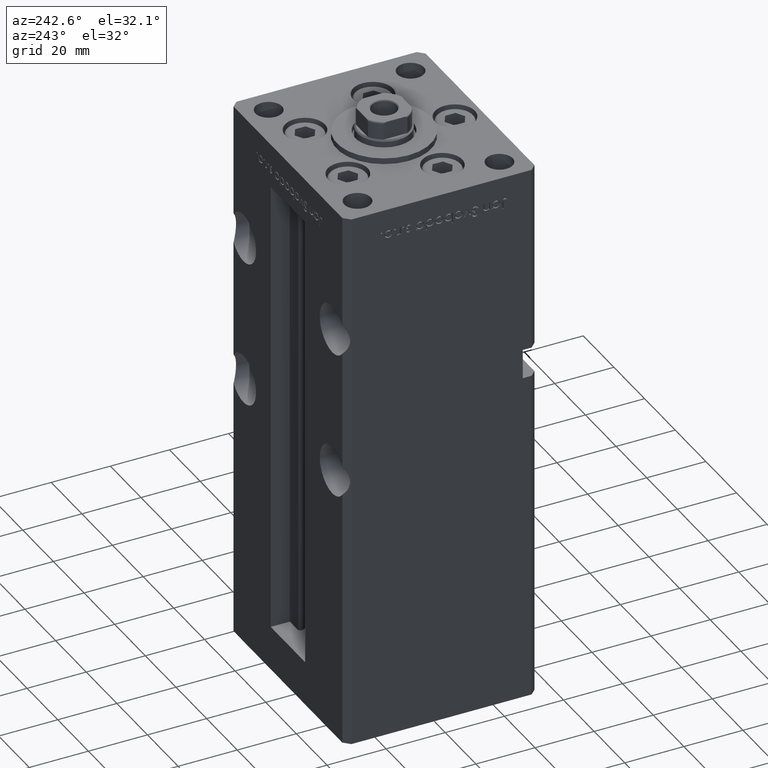
[diagram: clean part render]
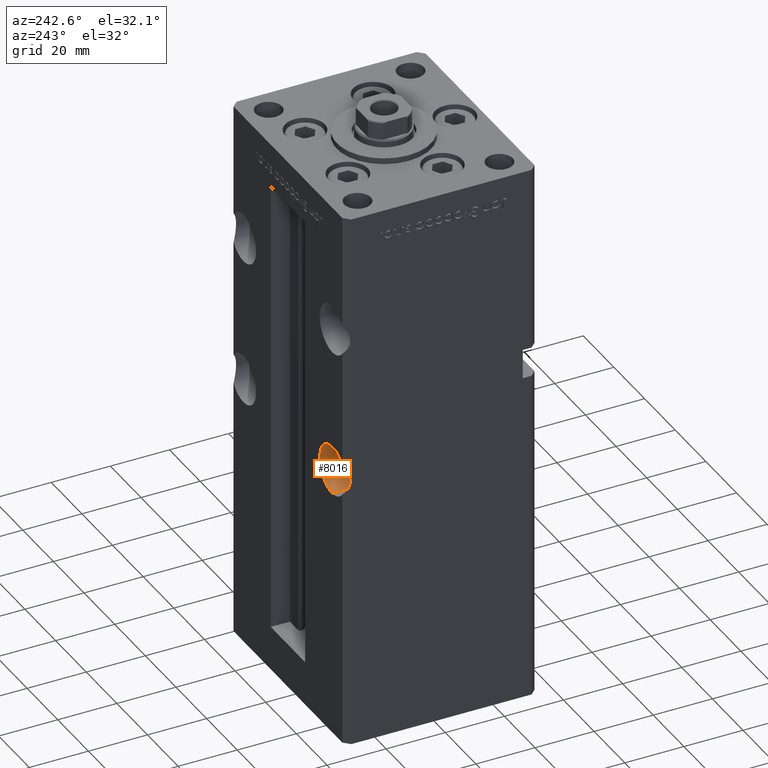
[diagram: same view with one face highlighted and labeled with its STEP entity id]
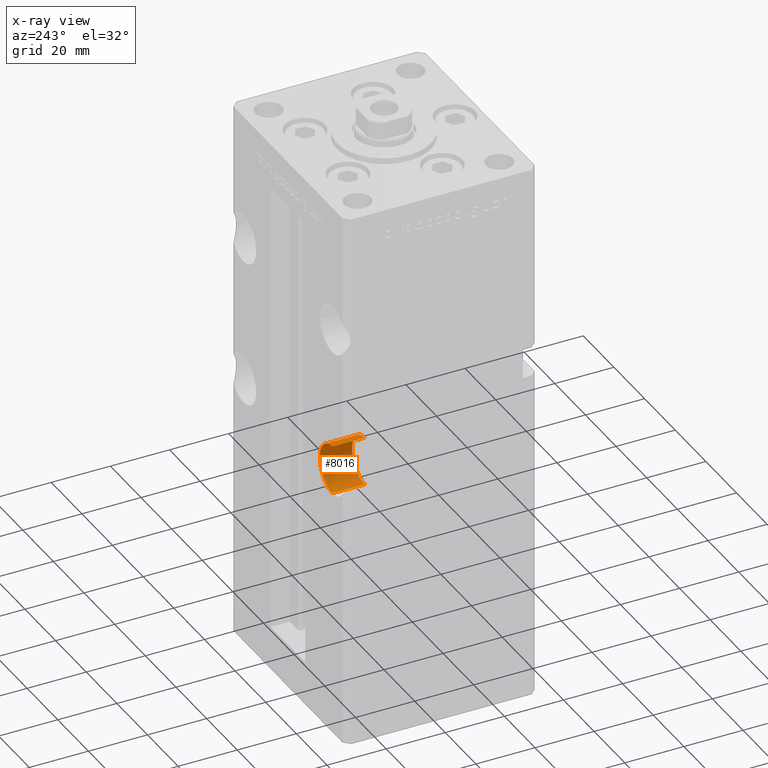
[diagram: x-ray of the same camera — body ghosted, the highlighted face saturated]
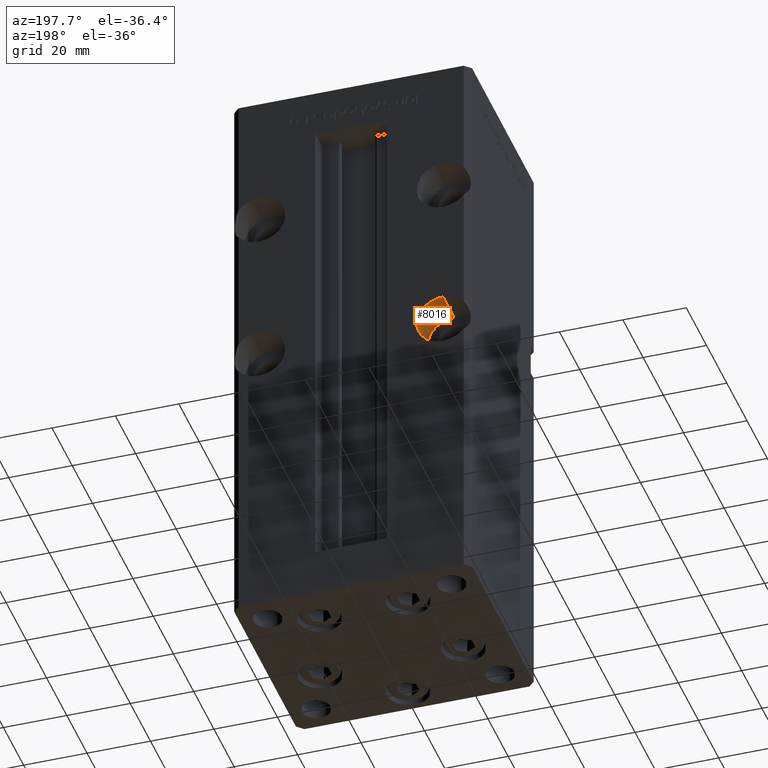
[diagram: same view with one face highlighted and labeled with its STEP entity id]
A machine part, auxiliary view. The second image highlights one B-rep face of the part: STEP entity #8016.
The next image is the same camera in x-ray: the body ghosted, the highlighted face saturated — about 0% of this face is hidden behind the body in this view.
A second angle (auxiliary view) of the same face is appended — the face is thin or edge-on in the first view.
In plain terms, the highlighted cylindrical surface (edge-blend (fillet) strip) has radius 8.25 mm, axis along (0, 1, 0).
Its self-contained STEP definition (entity closure, byte-faithful):
#743 = DIRECTION ( 'NONE',  ( 0.000000000000000000, 1.000000000000000000, 0.000000000000000000 ) ) ;
#3900 = DIRECTION ( 'NONE',  ( 0.000000000000000000, 0.000000000000000000, 1.000000000000000000 ) ) ;
#4025 = DIRECTION ( 'NONE',  ( -0.000000000000000000, 1.000000000000000000, -0.000000000000000000 ) ) ;
#6362 = AXIS2_PLACEMENT_3D ( 'NONE', #37306, #743, #17707 ) ;
#7425 = VECTOR ( 'NONE', #4025, 1000.000000000000000 ) ;
#8016 = ADVANCED_FACE ( 'NONE', ( #40758 ), #21105, .F. ) ;
#9811 = CIRCLE ( 'NONE', #6362, 8.250000000000007105 ) ;
#10661 = AXIS2_PLACEMENT_3D ( 'NONE', #12244, #28639, #48551 ) ;
#11068 = ORIENTED_EDGE ( 'NONE', *, *, #51452, .F. ) ;
#12244 = CARTESIAN_POINT ( 'NONE',  ( -28.99999999999999645, 32.50000000000000000, 78.00000000000001421 ) ) ;
#13045 = LINE ( 'NONE', #33740, #13619 ) ;
#13242 = VERTEX_POINT ( 'NONE', #25185 ) ;
#13619 = VECTOR ( 'NONE', #29450, 1000.000000000000000 ) ;
#14313 = EDGE_CURVE ( 'NONE', #13242, #34806, #16677, .T. ) ;
#16677 = CIRCLE ( 'NONE', #10661, 8.250000000000007105 ) ;
#16937 = LINE ( 'NONE', #25540, #7425 ) ;
#17362 = CARTESIAN_POINT ( 'NONE',  ( -28.99999999999999645, 21.50000000000000000, 78.00000000000001421 ) ) ;
#17707 = DIRECTION ( 'NONE',  ( 0.000000000000000000, 0.000000000000000000, 1.000000000000000000 ) ) ;
#18509 = EDGE_CURVE ( 'NONE', #18966, #50009, #9811, .T. ) ;
#18966 = VERTEX_POINT ( 'NONE', #34947 ) ;
#20033 = CARTESIAN_POINT ( 'NONE',  ( -28.99999999999999645, 32.50000000000000000, 69.75000000000000000 ) ) ;
#20408 = ORIENTED_EDGE ( 'NONE', *, *, #18509, .F. ) ;
#21105 = CYLINDRICAL_SURFACE ( 'NONE', #24203, 8.250000000000007105 ) ;
#21293 = CARTESIAN_POINT ( 'NONE',  ( -28.99999999999999645, 21.50000000000000000, 69.75000000000000000 ) ) ;
#24203 = AXIS2_PLACEMENT_3D ( 'NONE', #17362, #29182, #3900 ) ;
#25185 = CARTESIAN_POINT ( 'NONE',  ( -28.99999999999999645, 32.50000000000000000, 86.25000000000001421 ) ) ;
#25540 = CARTESIAN_POINT ( 'NONE',  ( -28.99999999999999645, 21.50000000000000000, 86.25000000000001421 ) ) ;
#28639 = DIRECTION ( 'NONE',  ( 0.000000000000000000, 1.000000000000000000, 0.000000000000000000 ) ) ;
#29182 = DIRECTION ( 'NONE',  ( -0.000000000000000000, 1.000000000000000000, -0.000000000000000000 ) ) ;
#29450 = DIRECTION ( 'NONE',  ( -0.000000000000000000, 1.000000000000000000, -0.000000000000000000 ) ) ;
#33740 = CARTESIAN_POINT ( 'NONE',  ( -28.99999999999999645, 21.50000000000000000, 69.75000000000000000 ) ) ;
#34806 = VERTEX_POINT ( 'NONE', #20033 ) ;
#34947 = CARTESIAN_POINT ( 'NONE',  ( -28.99999999999999645, 21.50000000000000000, 86.25000000000001421 ) ) ;
#36125 = ORIENTED_EDGE ( 'NONE', *, *, #39713, .T. ) ;
#37306 = CARTESIAN_POINT ( 'NONE',  ( -28.99999999999999645, 21.50000000000000000, 78.00000000000001421 ) ) ;
#39713 = EDGE_CURVE ( 'NONE', #18966, #13242, #16937, .T. ) ;
#40758 = FACE_OUTER_BOUND ( 'NONE', #41701, .T. ) ;
#41701 = EDGE_LOOP ( 'NONE', ( #11068, #20408, #36125, #43854 ) ) ;
#43854 = ORIENTED_EDGE ( 'NONE', *, *, #14313, .T. ) ;
#48551 = DIRECTION ( 'NONE',  ( 0.000000000000000000, 0.000000000000000000, 1.000000000000000000 ) ) ;
#50009 = VERTEX_POINT ( 'NONE', #21293 ) ;
#51452 = EDGE_CURVE ( 'NONE', #50009, #34806, #13045, .T. ) ;